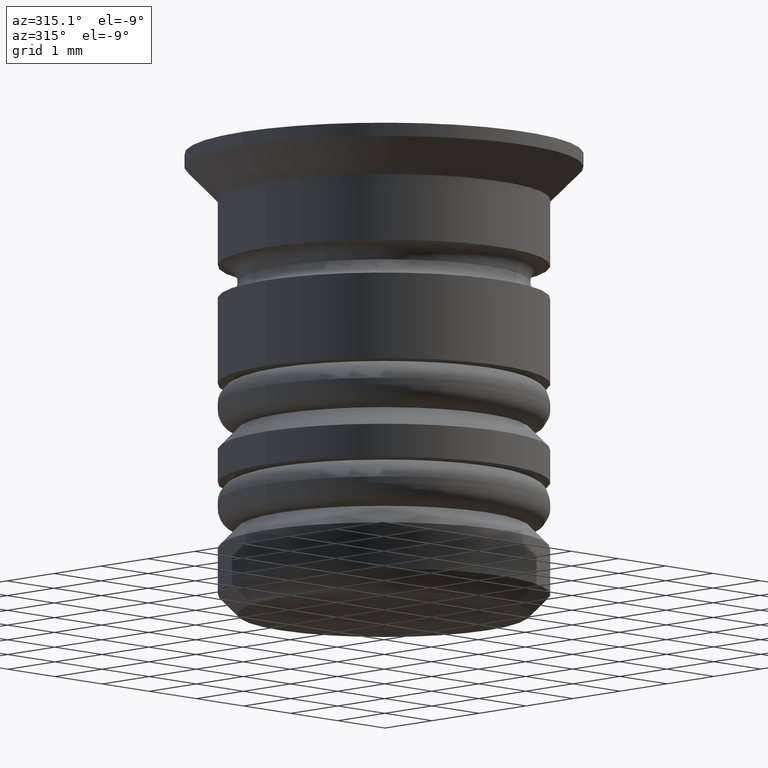
[diagram: clean part render]
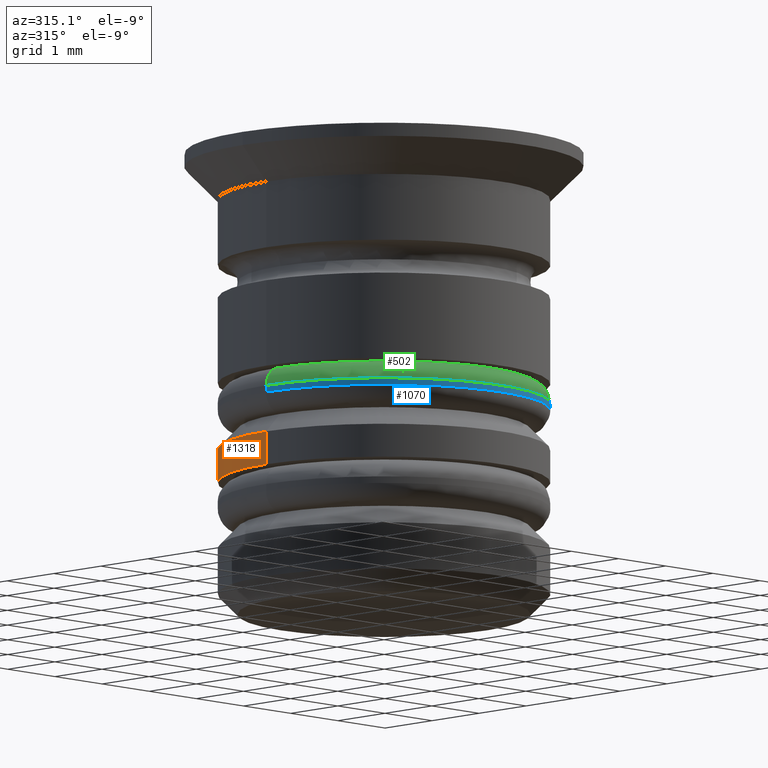
[diagram: same view with three faces highlighted in distinct colors, each labeled with its STEP entity id]
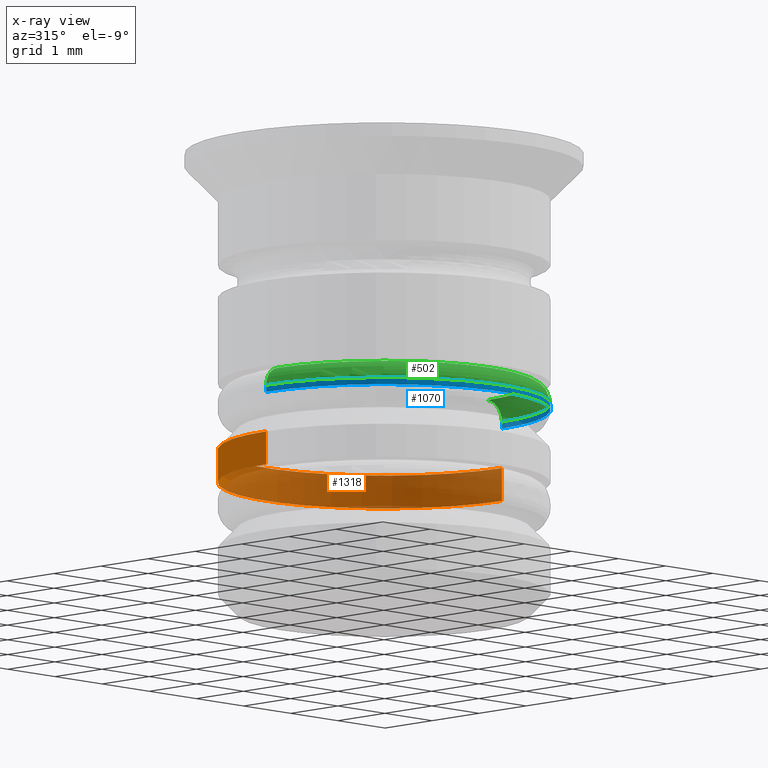
[diagram: x-ray of the same camera — body ghosted, the three highlighted faces saturated]
A machine part, auxiliary view with three faces highlighted in distinct colors.
The next image is the same camera in x-ray (body ghosted, the three faces saturated) — at least one of them is partly hidden behind the body in this view.
Their STEP definitions:

[orange] entity #1318 — the highlighted cylindrical surface (partial cylindrical patch) has radius 2.5 mm, axis along (-0, -0, 1).
#112 = AXIS2_PLACEMENT_3D ( 'NONE', #429, #138, #975 ) ;
#121 = ORIENTED_EDGE ( 'NONE', *, *, #920, .T. ) ;
#138 = DIRECTION ( 'NONE',  ( 0.000000000000000000, 0.000000000000000000, -1.000000000000000000 ) ) ;
#207 = ORIENTED_EDGE ( 'NONE', *, *, #709, .T. ) ;
#228 = CIRCLE ( 'NONE', #112, 2.500000000000001332 ) ;
#254 = CARTESIAN_POINT ( 'NONE',  ( -2.500000000000001332, 3.061616997868385113E-16, 0.000000000000000000 ) ) ;
#323 = CARTESIAN_POINT ( 'NONE',  ( 2.500000000000001332, 0.000000000000000000, 0.000000000000000000 ) ) ;
#337 = VECTOR ( 'NONE', #533, 1000.000000000000000 ) ;
#404 = AXIS2_PLACEMENT_3D ( 'NONE', #743, #1737, #986 ) ;
#429 = CARTESIAN_POINT ( 'NONE',  ( 0.000000000000000000, 0.000000000000000000, -4.500000000000007105 ) ) ;
#477 = FACE_OUTER_BOUND ( 'NONE', #1069, .T. ) ;
#480 = DIRECTION ( 'NONE',  ( -0.000000000000000000, -0.000000000000000000, 1.000000000000000000 ) ) ;
#487 = CARTESIAN_POINT ( 'NONE',  ( 0.000000000000000000, 0.000000000000000000, 0.000000000000000000 ) ) ;
#533 = DIRECTION ( 'NONE',  ( -0.000000000000000000, -0.000000000000000000, 1.000000000000000000 ) ) ;
#542 = VERTEX_POINT ( 'NONE', #746 ) ;
#616 = ORIENTED_EDGE ( 'NONE', *, *, #728, .T. ) ;
#641 = VECTOR ( 'NONE', #480, 1000.000000000000000 ) ;
#709 = EDGE_CURVE ( 'NONE', #542, #1596, #1134, .T. ) ;
#728 = EDGE_CURVE ( 'NONE', #1596, #1556, #769, .T. ) ;
#743 = CARTESIAN_POINT ( 'NONE',  ( 0.000000000000000000, 0.000000000000000000, -5.000000000000003553 ) ) ;
#746 = CARTESIAN_POINT ( 'NONE',  ( 2.500000000000001776, 0.000000000000000000, -5.000000000000003553 ) ) ;
#763 = VERTEX_POINT ( 'NONE', #1662 ) ;
#769 = LINE ( 'NONE', #254, #337 ) ;
#870 = LINE ( 'NONE', #323, #641 ) ;
#920 = EDGE_CURVE ( 'NONE', #1556, #763, #228, .T. ) ;
#975 = DIRECTION ( 'NONE',  ( -1.000000000000000000, 0.000000000000000000, 0.000000000000000000 ) ) ;
#984 = ORIENTED_EDGE ( 'NONE', *, *, #1162, .F. ) ;
#986 = DIRECTION ( 'NONE',  ( 1.000000000000000000, 0.000000000000000000, 0.000000000000000000 ) ) ;
#1055 = DIRECTION ( 'NONE',  ( -0.000000000000000000, -0.000000000000000000, 1.000000000000000000 ) ) ;
#1069 = EDGE_LOOP ( 'NONE', ( #207, #616, #121, #984 ) ) ;
#1134 = CIRCLE ( 'NONE', #404, 2.500000000000001776 ) ;
#1162 = EDGE_CURVE ( 'NONE', #542, #763, #870, .T. ) ;
#1230 = AXIS2_PLACEMENT_3D ( 'NONE', #487, #1055, #1479 ) ;
#1310 = CARTESIAN_POINT ( 'NONE',  ( -2.500000000000001776, 3.061616997868385606E-16, -5.000000000000003553 ) ) ;
#1318 = ADVANCED_FACE ( 'NONE', ( #477 ), #1758, .T. ) ;
#1479 = DIRECTION ( 'NONE',  ( 1.000000000000000000, 0.000000000000000000, 0.000000000000000000 ) ) ;
#1556 = VERTEX_POINT ( 'NONE', #1615 ) ;
#1596 = VERTEX_POINT ( 'NONE', #1310 ) ;
#1615 = CARTESIAN_POINT ( 'NONE',  ( -2.500000000000001332, 3.061616997868385113E-16, -4.500000000000007105 ) ) ;
#1662 = CARTESIAN_POINT ( 'NONE',  ( 2.500000000000001332, 0.000000000000000000, -4.500000000000007105 ) ) ;
#1737 = DIRECTION ( 'NONE',  ( -0.000000000000000000, -0.000000000000000000, 1.000000000000000000 ) ) ;
#1758 = CYLINDRICAL_SURFACE ( 'NONE', #1230, 2.500000000000001332 ) ;

[blue] entity #1070 — the highlighted cylindrical surface (partial cylindrical patch) has radius 2.5 mm, axis along (-0, -0, 1).
#135 = CIRCLE ( 'NONE', #1226, 2.500000000000001776 ) ;
#156 = DIRECTION ( 'NONE',  ( -1.000000000000000000, 0.000000000000000000, 0.000000000000000000 ) ) ;
#177 = CARTESIAN_POINT ( 'NONE',  ( -2.500000000000001776, 3.061616997868385606E-16, -3.900000000000010125 ) ) ;
#187 = EDGE_CURVE ( 'NONE', #1449, #1546, #597, .T. ) ;
#189 = ORIENTED_EDGE ( 'NONE', *, *, #1483, .F. ) ;
#275 = VERTEX_POINT ( 'NONE', #177 ) ;
#284 = ORIENTED_EDGE ( 'NONE', *, *, #187, .T. ) ;
#308 = ORIENTED_EDGE ( 'NONE', *, *, #1709, .T. ) ;
#326 = CARTESIAN_POINT ( 'NONE',  ( 0.000000000000000000, 0.000000000000000000, -3.800000000000003819 ) ) ;
#332 = EDGE_CURVE ( 'NONE', #275, #536, #135, .T. ) ;
#412 = LINE ( 'NONE', #1398, #1471 ) ;
#450 = LINE ( 'NONE', #1436, #700 ) ;
#485 = CARTESIAN_POINT ( 'NONE',  ( 0.000000000000000000, 0.000000000000000000, -3.900000000000010125 ) ) ;
#501 = CYLINDRICAL_SURFACE ( 'NONE', #527, 2.500000000000001776 ) ;
#527 = AXIS2_PLACEMENT_3D ( 'NONE', #808, #1648, #1372 ) ;
#536 = VERTEX_POINT ( 'NONE', #1012 ) ;
#597 = CIRCLE ( 'NONE', #1274, 2.500000000000001776 ) ;
#700 = VECTOR ( 'NONE', #1299, 1000.000000000000000 ) ;
#808 = CARTESIAN_POINT ( 'NONE',  ( 0.000000000000000000, 0.000000000000000000, -11.27106781186549078 ) ) ;
#1012 = CARTESIAN_POINT ( 'NONE',  ( 2.500000000000001776, 0.000000000000000000, -3.900000000000010125 ) ) ;
#1040 = CARTESIAN_POINT ( 'NONE',  ( -2.500000000000001776, 3.061616997868385606E-16, -3.800000000000003819 ) ) ;
#1070 = ADVANCED_FACE ( 'NONE', ( #1084 ), #501, .T. ) ;
#1084 = FACE_OUTER_BOUND ( 'NONE', #1506, .T. ) ;
#1127 = DIRECTION ( 'NONE',  ( -0.000000000000000000, -0.000000000000000000, 1.000000000000000000 ) ) ;
#1163 = ORIENTED_EDGE ( 'NONE', *, *, #332, .T. ) ;
#1210 = CARTESIAN_POINT ( 'NONE',  ( 2.500000000000001776, 0.000000000000000000, -3.800000000000003819 ) ) ;
#1226 = AXIS2_PLACEMENT_3D ( 'NONE', #485, #1335, #1487 ) ;
#1274 = AXIS2_PLACEMENT_3D ( 'NONE', #326, #1592, #156 ) ;
#1299 = DIRECTION ( 'NONE',  ( -0.000000000000000000, -0.000000000000000000, 1.000000000000000000 ) ) ;
#1335 = DIRECTION ( 'NONE',  ( 0.000000000000000000, 0.000000000000000000, 1.000000000000000000 ) ) ;
#1372 = DIRECTION ( 'NONE',  ( 1.000000000000000000, 0.000000000000000000, 0.000000000000000000 ) ) ;
#1398 = CARTESIAN_POINT ( 'NONE',  ( 2.500000000000001776, 0.000000000000000000, -11.27106781186549078 ) ) ;
#1436 = CARTESIAN_POINT ( 'NONE',  ( -2.500000000000001776, 3.061616997868385606E-16, -11.27106781186549078 ) ) ;
#1449 = VERTEX_POINT ( 'NONE', #1210 ) ;
#1471 = VECTOR ( 'NONE', #1127, 1000.000000000000000 ) ;
#1483 = EDGE_CURVE ( 'NONE', #275, #1546, #450, .T. ) ;
#1487 = DIRECTION ( 'NONE',  ( 1.000000000000000000, 0.000000000000000000, 0.000000000000000000 ) ) ;
#1506 = EDGE_LOOP ( 'NONE', ( #189, #1163, #308, #284 ) ) ;
#1546 = VERTEX_POINT ( 'NONE', #1040 ) ;
#1592 = DIRECTION ( 'NONE',  ( 0.000000000000000000, 0.000000000000000000, -1.000000000000000000 ) ) ;
#1648 = DIRECTION ( 'NONE',  ( -0.000000000000000000, -0.000000000000000000, 1.000000000000000000 ) ) ;
#1709 = EDGE_CURVE ( 'NONE', #536, #1449, #412, .T. ) ;

[green] entity #502 — the highlighted toroidal blend (fillet) surface has major radius 2.2 mm and minor (blend) radius 0.3 mm.
#11 = CARTESIAN_POINT ( 'NONE',  ( 0.000000000000000000, 0.000000000000000000, -3.800000000000003819 ) ) ;
#49 = DIRECTION ( 'NONE',  ( -1.000000000000000000, 0.000000000000000000, 0.000000000000000000 ) ) ;
#117 = CIRCLE ( 'NONE', #1172, 0.2999999999999999334 ) ;
#156 = DIRECTION ( 'NONE',  ( -1.000000000000000000, 0.000000000000000000, 0.000000000000000000 ) ) ;
#159 = ORIENTED_EDGE ( 'NONE', *, *, #187, .F. ) ;
#165 = EDGE_CURVE ( 'NONE', #857, #1697, #190, .T. ) ;
#184 = FACE_OUTER_BOUND ( 'NONE', #1575, .T. ) ;
#187 = EDGE_CURVE ( 'NONE', #1449, #1546, #597, .T. ) ;
#190 = CIRCLE ( 'NONE', #958, 2.200000000000001954 ) ;
#237 = ORIENTED_EDGE ( 'NONE', *, *, #1079, .T. ) ;
#326 = CARTESIAN_POINT ( 'NONE',  ( 0.000000000000000000, 0.000000000000000000, -3.800000000000003819 ) ) ;
#401 = AXIS2_PLACEMENT_3D ( 'NONE', #11, #579, #49 ) ;
#502 = ADVANCED_FACE ( 'NONE', ( #184 ), #836, .T. ) ;
#503 = CARTESIAN_POINT ( 'NONE',  ( 2.200000000000001954, 2.694222958124179472E-16, -3.800000000000003819 ) ) ;
#516 = ORIENTED_EDGE ( 'NONE', *, *, #1331, .F. ) ;
#518 = DIRECTION ( 'NONE',  ( -0.000000000000000000, -1.000000000000000000, -0.000000000000000000 ) ) ;
#579 = DIRECTION ( 'NONE',  ( 0.000000000000000000, 0.000000000000000000, -1.000000000000000000 ) ) ;
#597 = CIRCLE ( 'NONE', #1274, 2.500000000000001776 ) ;
#613 = CARTESIAN_POINT ( 'NONE',  ( 0.000000000000000000, 0.000000000000000000, -3.500000000000003997 ) ) ;
#749 = DIRECTION ( 'NONE',  ( -0.000000000000000000, -0.000000000000000000, 1.000000000000000000 ) ) ;
#836 = TOROIDAL_SURFACE ( 'NONE', #401, 2.200000000000001954, 0.2999999999999999889 ) ;
#857 = VERTEX_POINT ( 'NONE', #1800 ) ;
#862 = DIRECTION ( 'NONE',  ( -1.000000000000000000, 0.000000000000000000, 0.000000000000000000 ) ) ;
#958 = AXIS2_PLACEMENT_3D ( 'NONE', #613, #749, #862 ) ;
#991 = CIRCLE ( 'NONE', #1202, 0.2999999999999999334 ) ;
#1040 = CARTESIAN_POINT ( 'NONE',  ( -2.500000000000001776, 3.061616997868385606E-16, -3.800000000000003819 ) ) ;
#1079 = EDGE_CURVE ( 'NONE', #857, #1546, #991, .T. ) ;
#1172 = AXIS2_PLACEMENT_3D ( 'NONE', #503, #1440, #1638 ) ;
#1196 = CARTESIAN_POINT ( 'NONE',  ( -2.200000000000001954, 0.000000000000000000, -3.800000000000003819 ) ) ;
#1202 = AXIS2_PLACEMENT_3D ( 'NONE', #1196, #518, #1779 ) ;
#1210 = CARTESIAN_POINT ( 'NONE',  ( 2.500000000000001776, 0.000000000000000000, -3.800000000000003819 ) ) ;
#1274 = AXIS2_PLACEMENT_3D ( 'NONE', #326, #1592, #156 ) ;
#1331 = EDGE_CURVE ( 'NONE', #1697, #1449, #117, .T. ) ;
#1366 = ORIENTED_EDGE ( 'NONE', *, *, #165, .F. ) ;
#1378 = CARTESIAN_POINT ( 'NONE',  ( 2.200000000000001954, 2.877919977996282293E-16, -3.500000000000003997 ) ) ;
#1440 = DIRECTION ( 'NONE',  ( -1.224646799147353207E-16, 1.000000000000000000, 0.000000000000000000 ) ) ;
#1449 = VERTEX_POINT ( 'NONE', #1210 ) ;
#1546 = VERTEX_POINT ( 'NONE', #1040 ) ;
#1575 = EDGE_LOOP ( 'NONE', ( #516, #1366, #237, #159 ) ) ;
#1592 = DIRECTION ( 'NONE',  ( 0.000000000000000000, 0.000000000000000000, -1.000000000000000000 ) ) ;
#1638 = DIRECTION ( 'NONE',  ( -1.000000000000000000, -1.224646799147353207E-16, 0.000000000000000000 ) ) ;
#1697 = VERTEX_POINT ( 'NONE', #1378 ) ;
#1779 = DIRECTION ( 'NONE',  ( 0.000000000000000000, 0.000000000000000000, -1.000000000000000000 ) ) ;
#1800 = CARTESIAN_POINT ( 'NONE',  ( -2.200000000000001954, 0.000000000000000000, -3.500000000000003997 ) ) ;